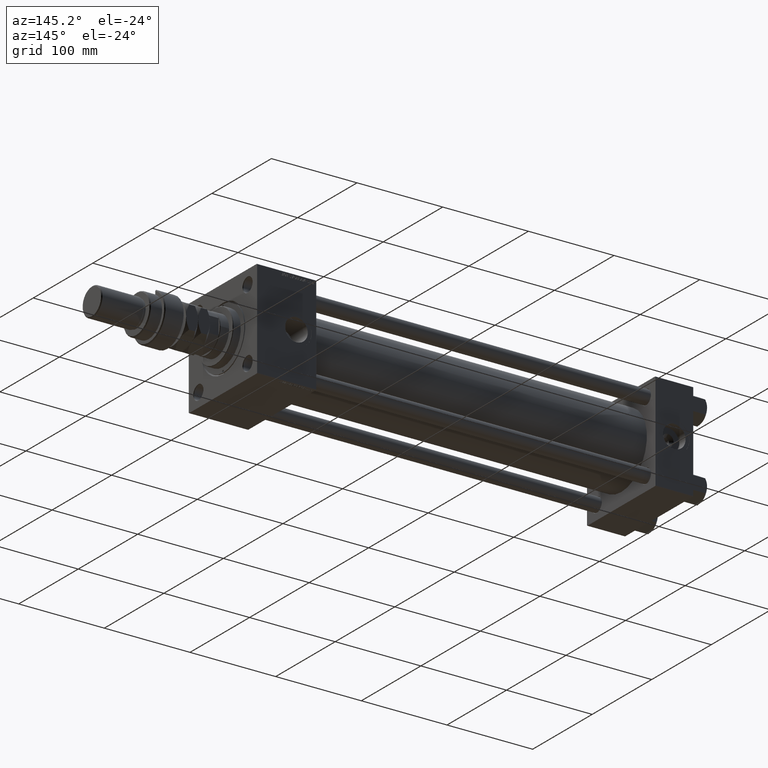
[diagram: clean part render]
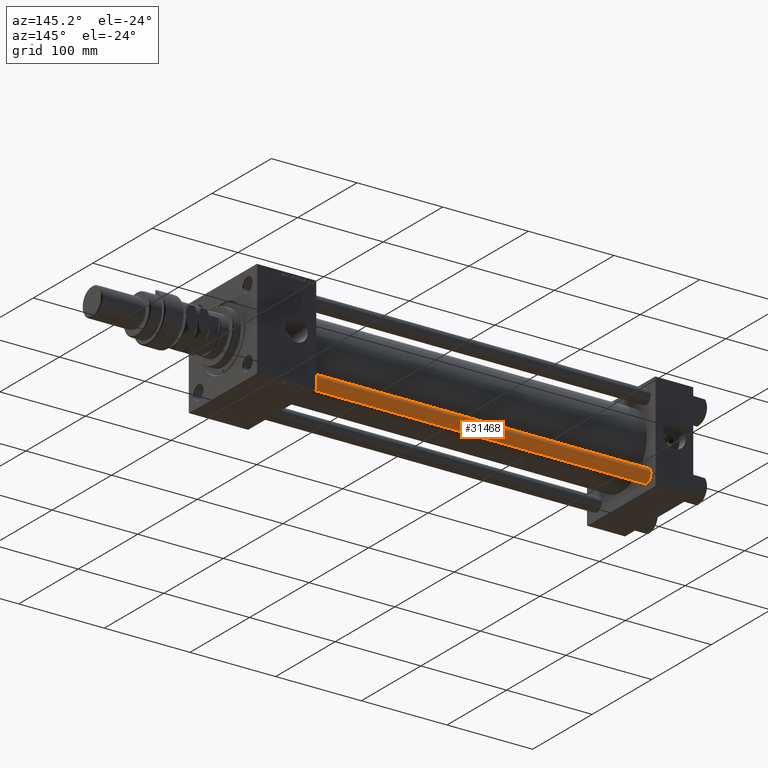
[diagram: same view with one face highlighted and labeled with its STEP entity id]
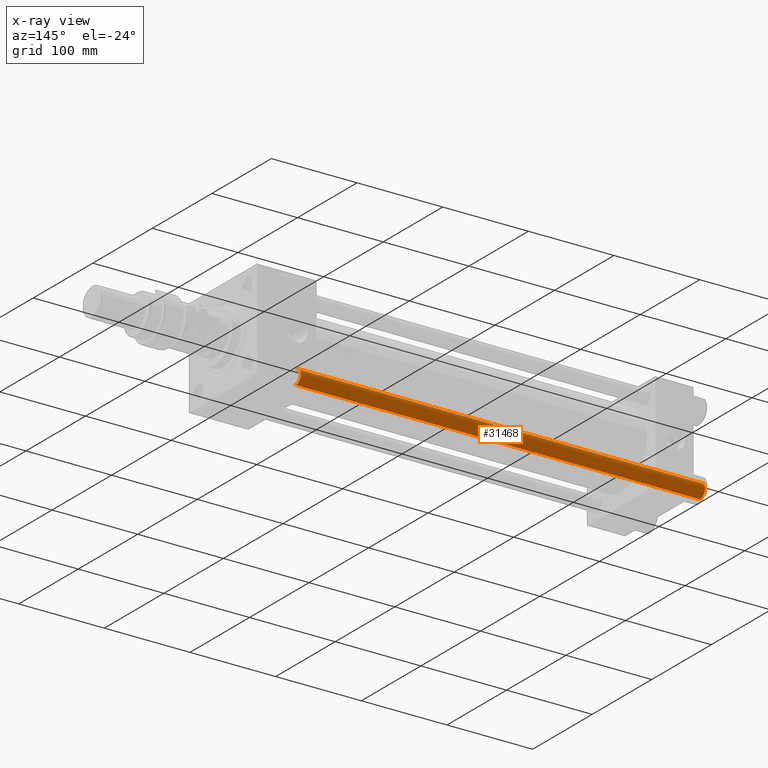
[diagram: x-ray of the same camera — body ghosted, the highlighted face saturated]
A machine part, auxiliary view. The second image highlights one B-rep face of the part: STEP entity #31468.
The next image is the same camera in x-ray: the body ghosted, the highlighted face saturated — about 0% of this face is hidden behind the body in this view.
In plain terms, the highlighted cylindrical surface (edge-blend (fillet) strip) has radius 8 mm, axis along (1, -0, 0).
Its self-contained STEP definition (entity closure, byte-faithful):
#29 = AXIS2_PLACEMENT_3D ( 'NONE', #662, #47914, #31051 ) ;
#662 = CARTESIAN_POINT ( 'NONE',  ( 0.000000000000000000, 0.000000000000000000, 472.5000000000002274 ) ) ;
#1739 = LINE ( 'NONE', #13147, #42549 ) ;
#2347 = DIRECTION ( 'NONE',  ( -0.000000000000000000, -0.000000000000000000, -1.000000000000000000 ) ) ;
#3262 = CARTESIAN_POINT ( 'NONE',  ( -8.000000000000000000, 0.000000000000000000, 473.0000000000000000 ) ) ;
#4052 = LINE ( 'NONE', #3262, #39068 ) ;
#4364 = CIRCLE ( 'NONE', #29, 8.000000000000000000 ) ;
#5185 = ORIENTED_EDGE ( 'NONE', *, *, #21228, .T. ) ;
#6575 = VERTEX_POINT ( 'NONE', #40827 ) ;
#9375 = EDGE_CURVE ( 'NONE', #30489, #6575, #4052, .T. ) ;
#12491 = CARTESIAN_POINT ( 'NONE',  ( 8.000000000000000000, 9.797174393178823685E-16, 0.5000000000004445333 ) ) ;
#13147 = CARTESIAN_POINT ( 'NONE',  ( 8.000000000000000000, 9.797174393178823685E-16, 473.0000000000000000 ) ) ;
#15381 = FACE_OUTER_BOUND ( 'NONE', #34672, .T. ) ;
#15750 = DIRECTION ( 'NONE',  ( -0.000000000000000000, -0.000000000000000000, -1.000000000000000000 ) ) ;
#17793 = VERTEX_POINT ( 'NONE', #12491 ) ;
#18308 = DIRECTION ( 'NONE',  ( -0.000000000000000000, -0.000000000000000000, -1.000000000000000000 ) ) ;
#21228 = EDGE_CURVE ( 'NONE', #39470, #17793, #1739, .T. ) ;
#21276 = EDGE_CURVE ( 'NONE', #30489, #39470, #4364, .T. ) ;
#22087 = CIRCLE ( 'NONE', #27271, 8.000000000000000000 ) ;
#27271 = AXIS2_PLACEMENT_3D ( 'NONE', #27987, #44574, #28515 ) ;
#27987 = CARTESIAN_POINT ( 'NONE',  ( 0.000000000000000000, 0.000000000000000000, 0.5000000000004445333 ) ) ;
#28515 = DIRECTION ( 'NONE',  ( 1.000000000000000000, 0.000000000000000000, 0.000000000000000000 ) ) ;
#30489 = VERTEX_POINT ( 'NONE', #46947 ) ;
#31051 = DIRECTION ( 'NONE',  ( 1.000000000000000000, 0.000000000000000000, 0.000000000000000000 ) ) ;
#31468 = ADVANCED_FACE ( 'NONE', ( #15381 ), #48520, .T. ) ;
#33798 = EDGE_CURVE ( 'NONE', #17793, #6575, #22087, .T. ) ;
#34672 = EDGE_LOOP ( 'NONE', ( #35936, #5185, #53348, #45176 ) ) ;
#35936 = ORIENTED_EDGE ( 'NONE', *, *, #21276, .T. ) ;
#36726 = AXIS2_PLACEMENT_3D ( 'NONE', #40622, #2347, #47982 ) ;
#39068 = VECTOR ( 'NONE', #15750, 1000.000000000000000 ) ;
#39470 = VERTEX_POINT ( 'NONE', #50174 ) ;
#40622 = CARTESIAN_POINT ( 'NONE',  ( 0.000000000000000000, 0.000000000000000000, 473.0000000000000000 ) ) ;
#40827 = CARTESIAN_POINT ( 'NONE',  ( -8.000000000000000000, 0.000000000000000000, 0.5000000000004445333 ) ) ;
#42549 = VECTOR ( 'NONE', #18308, 1000.000000000000000 ) ;
#44574 = DIRECTION ( 'NONE',  ( -0.000000000000000000, -0.000000000000000000, 1.000000000000000000 ) ) ;
#45176 = ORIENTED_EDGE ( 'NONE', *, *, #9375, .F. ) ;
#46947 = CARTESIAN_POINT ( 'NONE',  ( -8.000000000000000000, 0.000000000000000000, 472.5000000000002274 ) ) ;
#47914 = DIRECTION ( 'NONE',  ( 0.000000000000000000, 0.000000000000000000, -1.000000000000000000 ) ) ;
#47982 = DIRECTION ( 'NONE',  ( -1.000000000000000000, 0.000000000000000000, 0.000000000000000000 ) ) ;
#48520 = CYLINDRICAL_SURFACE ( 'NONE', #36726, 8.000000000000000000 ) ;
#50174 = CARTESIAN_POINT ( 'NONE',  ( 8.000000000000000000, 9.797174393178823685E-16, 472.5000000000002274 ) ) ;
#53348 = ORIENTED_EDGE ( 'NONE', *, *, #33798, .T. ) ;